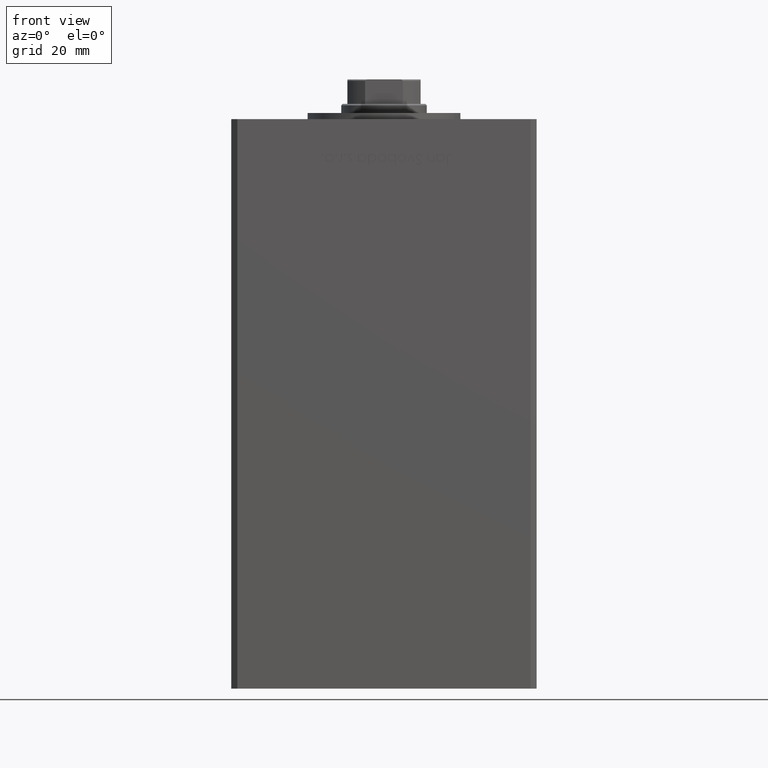
[diagram: clean part render]
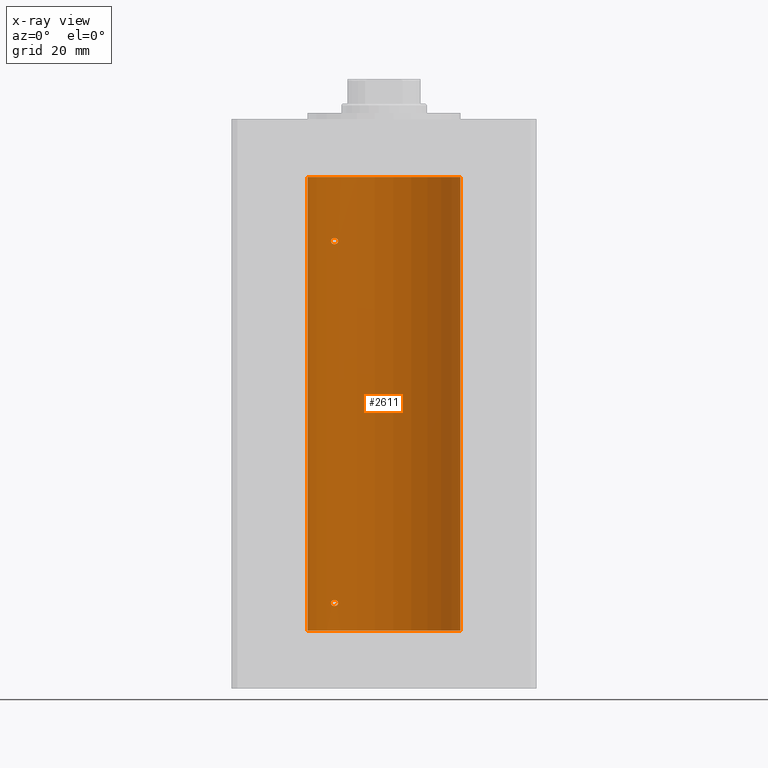
[diagram: x-ray — body ghosted, one internal face saturated and labeled with its STEP entity id]
A machine part, front view, then the same camera in x-ray: the body is ghosted and one INTERNAL B-rep face — a face not visible from any outside direction — is saturated and labeled: STEP entity #2611.
In plain terms, the highlighted cylindrical surface (partial cylindrical patch) has radius 25 mm, axis along (-0, -0, -1).
Its self-contained STEP definition (entity closure, byte-faithful):
#382 = CARTESIAN_POINT ( 'NONE',  ( -15.34666241858319502, 19.73581294411415499, 126.8121224605376653 ) ) ;
#646 = CARTESIAN_POINT ( 'NONE',  ( -15.00000000000019895, 20.00000000000001066, 127.4159474586024032 ) ) ;
#914 = CARTESIAN_POINT ( 'NONE',  ( -17.15234217094407754, 18.18812579706695942, 126.8965730437749926 ) ) ;
#1021 = EDGE_CURVE ( 'NONE', #1577, #42938, #44751, .T. ) ;
#1109 = CARTESIAN_POINT ( 'NONE',  ( -17.34935157289807250, 17.99999999999980815, 127.5000000000001137 ) ) ;
#1135 = EDGE_CURVE ( 'NONE', #25825, #39391, #13548, .T. ) ;
#1374 = CARTESIAN_POINT ( 'NONE',  ( -15.34624284195506050, 19.73614442075939834, 128.1876185318513137 ) ) ;
#1577 = VERTEX_POINT ( 'NONE', #48288 ) ;
#1985 = B_SPLINE_CURVE_WITH_KNOTS ( 'NONE', 3,
 ( #26398, #9806, #30362, #42495, #45955, #6366, #43027, #2406, #18500, #34584, #50674, #14515, #51469, #23501, #11093, #47492, #39590, #12129, #3449, #19543 ),
 .UNSPECIFIED., .F., .F.,
 ( 4, 2, 2, 2, 2, 2, 2, 2, 2, 4 ),
 ( 1.994630283518400476E-16, 0.0005040871078734959028, 0.001008174215746792312, 0.001512261323620088830, 0.002016348431493385131, 0.002520435539366681216, 0.003024522647239978167, 0.003528609755113274252, 0.003780653309049923812, 0.004032696862986573372 ),
 .UNSPECIFIED. ) ;
#2135 = CARTESIAN_POINT ( 'NONE',  ( -17.30163983552689189, 18.04615713653366882, 127.8360074727278004 ) ) ;
#2217 = CARTESIAN_POINT ( 'NONE',  ( -17.34935157289806895, 17.99999999999981526, 9.000000000000094147 ) ) ;
#2406 = CARTESIAN_POINT ( 'NONE',  ( -16.46844752485326069, 18.81003400474354237, 8.011544319038929274 ) ) ;
#2611 = ADVANCED_FACE ( 'NONE', ( #20856, #8978, #36945 ), #29016, .F. ) ;
#3449 = CARTESIAN_POINT ( 'NONE',  ( -15.00000000000019007, 20.00000000000002842, 8.915947458602436981 ) ) ;
#3512 = DIRECTION ( 'NONE',  ( -0.000000000000000000, -0.000000000000000000, -1.000000000000000000 ) ) ;
#3785 = VECTOR ( 'NONE', #3512, 1000.000000000000000 ) ;
#4122 = CARTESIAN_POINT ( 'NONE',  ( -25.00000000000000000, 0.000000000000000000, 148.5000000000000000 ) ) ;
#4357 = EDGE_LOOP ( 'NONE', ( #32109, #11519 ) ) ;
#4609 = CARTESIAN_POINT ( 'NONE',  ( -15.06722189748649399, 19.94943357555937880, 127.1759803248789211 ) ) ;
#4877 = CARTESIAN_POINT ( 'NONE',  ( -17.34935157289807250, 17.99999999999980815, 127.5000000000001137 ) ) ;
#5082 = CARTESIAN_POINT ( 'NONE',  ( -15.06763582406798285, 19.94912143246364877, 127.8250699387717191 ) ) ;
#5224 = VERTEX_POINT ( 'NONE', #26180 ) ;
#5852 = CARTESIAN_POINT ( 'NONE',  ( -15.01476641895662745, 19.98894406010706959, 127.6687945634013062 ) ) ;
#6102 = CARTESIAN_POINT ( 'NONE',  ( -16.99843849356149761, 18.33190197607053662, 128.2468335145756271 ) ) ;
#6366 = CARTESIAN_POINT ( 'NONE',  ( -16.83415218046512152, 18.48332662461726272, 8.134317266281161807 ) ) ;
#6852 = DIRECTION ( 'NONE',  ( -0.000000000000000000, 0.000000000000000000, 1.000000000000000000 ) ) ;
#7771 = CARTESIAN_POINT ( 'NONE',  ( -15.23538646979299216, 19.82157806413531986, 126.9119998952827615 ) ) ;
#8222 = EDGE_CURVE ( 'NONE', #48088, #44741, #23566, .T. ) ;
#8978 = FACE_BOUND ( 'NONE', #31580, .T. ) ;
#9462 = ORIENTED_EDGE ( 'NONE', *, *, #1135, .F. ) ;
#9806 = CARTESIAN_POINT ( 'NONE',  ( -17.34935157289747210, 18.00000000000001066, 8.828998360425808656 ) ) ;
#10136 = CARTESIAN_POINT ( 'NONE',  ( -17.14593038898729560, 18.19399314418734548, 9.595944883196500186 ) ) ;
#10378 = CARTESIAN_POINT ( 'NONE',  ( -17.05007833789893112, 18.28384926940286093, 9.701373999012139038 ) ) ;
#11093 = CARTESIAN_POINT ( 'NONE',  ( -15.23538646979297440, 19.82157806413534118, 8.411999895282772144 ) ) ;
#11519 = ORIENTED_EDGE ( 'NONE', *, *, #45988, .F. ) ;
#11763 = DIRECTION ( 'NONE',  ( -0.000000000000000000, -0.000000000000000000, -1.000000000000000000 ) ) ;
#11801 = VERTEX_POINT ( 'NONE', #48862 ) ;
#12129 = CARTESIAN_POINT ( 'NONE',  ( -15.01482636753732791, 19.98889854010116096, 8.831202661007704791 ) ) ;
#13548 = B_SPLINE_CURVE_WITH_KNOTS ( 'NONE', 3,
 ( #17798, #37082, #29160, #45269, #29422, #33888, #49972, #13827, #29923, #46031, #51282, #38622, #38356, #51015, #10378, #10136, #35190, #50233, #42575, #2217 ),
 .UNSPECIFIED., .F., .F.,
 ( 4, 2, 2, 2, 2, 2, 2, 2, 2, 4 ),
 ( 0.004032696862986573372, 0.004284699222246939054, 0.004536701581507305604, 0.005040706300028038704, 0.005544711018548771804, 0.006048715737069505771, 0.007056725174110978910, 0.007308727533371345460, 0.007560729892631712010, 0.008064734611152450314 ),
 .UNSPECIFIED. ) ;
#13657 = ORIENTED_EDGE ( 'NONE', *, *, #38294, .F. ) ;
#13827 = CARTESIAN_POINT ( 'NONE',  ( -15.58230678163760530, 19.55030131031898577, 9.843739486702938635 ) ) ;
#14515 = CARTESIAN_POINT ( 'NONE',  ( -15.70664578139651191, 19.45064696206092947, 8.100579599492109040 ) ) ;
#16297 = EDGE_CURVE ( 'NONE', #39391, #25825, #1985, .T. ) ;
#16993 = CARTESIAN_POINT ( 'NONE',  ( -17.05249165747619600, 18.28208333366437799, 126.7922192200364151 ) ) ;
#17198 = CARTESIAN_POINT ( 'NONE',  ( -17.34935157289806895, 17.99999999999981526, 9.000000000000094147 ) ) ;
#17473 = ORIENTED_EDGE ( 'NONE', *, *, #8222, .F. ) ;
#17717 = CARTESIAN_POINT ( 'NONE',  ( -15.00000000000000000, 20.00000000000000000, 127.5000000000000000 ) ) ;
#17798 = CARTESIAN_POINT ( 'NONE',  ( -14.99999999999999112, 20.00000000000001066, 9.000000000000000000 ) ) ;
#18148 = DIRECTION ( 'NONE',  ( -0.000000000000000000, 0.000000000000000000, 1.000000000000000000 ) ) ;
#18227 = CARTESIAN_POINT ( 'NONE',  ( -17.34935157289746854, 18.00000000000000711, 127.6709736906063739 ) ) ;
#18500 = CARTESIAN_POINT ( 'NONE',  ( -16.34293146994553680, 18.91921593628409681, 7.997342590672627871 ) ) ;
#18931 = CARTESIAN_POINT ( 'NONE',  ( 0.000000000000000000, 0.000000000000000000, 0.000000000000000000 ) ) ;
#19543 = CARTESIAN_POINT ( 'NONE',  ( -14.99999999999999112, 20.00000000000001066, 9.000000000000000000 ) ) ;
#20180 = CARTESIAN_POINT ( 'NONE',  ( -16.46844752485325358, 18.81003400474354237, 126.5115443190389044 ) ) ;
#20700 = CARTESIAN_POINT ( 'NONE',  ( -16.08757264251633501, 19.13682698743034294, 126.5034427658481775 ) ) ;
#20810 = CIRCLE ( 'NONE', #26651, 25.00000000000000000 ) ;
#20856 = FACE_OUTER_BOUND ( 'NONE', #27212, .T. ) ;
#21061 = CARTESIAN_POINT ( 'NONE',  ( -25.00000000000000000, 0.000000000000000000, 0.000000000000000000 ) ) ;
#21169 = CARTESIAN_POINT ( 'NONE',  ( -15.10490800566735814, 19.92096305044240268, 127.8962931740442173 ) ) ;
#21417 = CARTESIAN_POINT ( 'NONE',  ( -16.46913072925703858, 18.81168496547890712, 128.5057775588113884 ) ) ;
#21867 = DIRECTION ( 'NONE',  ( 1.000000000000000000, 0.000000000000000000, 0.000000000000000000 ) ) ;
#21939 = CARTESIAN_POINT ( 'NONE',  ( -16.08745393861403983, 19.13692152169250349, 128.4965015099869561 ) ) ;
#23501 = CARTESIAN_POINT ( 'NONE',  ( -15.34666241858317903, 19.73581294411416209, 8.312122460537615609 ) ) ;
#23566 = LINE ( 'NONE', #24083, #3785 ) ;
#23869 = CARTESIAN_POINT ( 'NONE',  ( -15.10490010356607016, 19.92096840819819192, 127.1037666713225320 ) ) ;
#24083 = CARTESIAN_POINT ( 'NONE',  ( 25.00000000000000000, 3.061616997868383043E-15, 148.5000000000000000 ) ) ;
#24135 = CARTESIAN_POINT ( 'NONE',  ( -16.34293146994552970, 18.91921593628409326, 126.4973425906726305 ) ) ;
#24460 = AXIS2_PLACEMENT_3D ( 'NONE', #26888, #6852, #50122 ) ;
#24656 = CARTESIAN_POINT ( 'NONE',  ( -15.95808436639360117, 19.24489366819299363, 126.5242608788495460 ) ) ;
#24920 = CARTESIAN_POINT ( 'NONE',  ( -17.34935157289747565, 18.00000000000000711, 127.3289983604258282 ) ) ;
#25081 = CARTESIAN_POINT ( 'NONE',  ( 0.000000000000000000, 0.000000000000000000, 148.5000000000000000 ) ) ;
#25825 = VERTEX_POINT ( 'NONE', #34949 ) ;
#26146 = CARTESIAN_POINT ( 'NONE',  ( -17.05007833789892757, 18.28384926940287869, 128.2013739990121906 ) ) ;
#26180 = CARTESIAN_POINT ( 'NONE',  ( -17.34935157289807250, 17.99999999999980815, 127.5000000000001137 ) ) ;
#26398 = CARTESIAN_POINT ( 'NONE',  ( -17.34935157289806895, 17.99999999999981526, 9.000000000000094147 ) ) ;
#26651 = AXIS2_PLACEMENT_3D ( 'NONE', #18931, #18148, #21867 ) ;
#26888 = CARTESIAN_POINT ( 'NONE',  ( 0.000000000000000000, 0.000000000000000000, 148.5000000000000000 ) ) ;
#27212 = EDGE_LOOP ( 'NONE', ( #17473, #48446, #36844, #13657 ) ) ;
#28072 = CARTESIAN_POINT ( 'NONE',  ( -15.01482636753733857, 19.98889854010115741, 127.3312026610076941 ) ) ;
#29016 = CYLINDRICAL_SURFACE ( 'NONE', #45906, 25.00000000000000000 ) ;
#29160 = CARTESIAN_POINT ( 'NONE',  ( -15.01476641895661679, 19.98894406010708380, 9.168794563401341691 ) ) ;
#29422 = CARTESIAN_POINT ( 'NONE',  ( -15.10490800566735814, 19.92096305044240978, 9.396293174044259899 ) ) ;
#29840 = CARTESIAN_POINT ( 'NONE',  ( -15.23594348686699007, 19.82115246225715310, 128.0887219326858428 ) ) ;
#29923 = CARTESIAN_POINT ( 'NONE',  ( -15.70535969280553346, 19.45169171760802840, 9.898960772112497253 ) ) ;
#30362 = CARTESIAN_POINT ( 'NONE',  ( -17.30269557861142360, 18.04515136187502122, 8.666042081755742643 ) ) ;
#31580 = EDGE_LOOP ( 'NONE', ( #33202, #9462 ) ) ;
#32109 = ORIENTED_EDGE ( 'NONE', *, *, #44938, .F. ) ;
#32560 = CARTESIAN_POINT ( 'NONE',  ( -15.70664578139652612, 19.45064696206092236, 126.6005795994921357 ) ) ;
#33202 = ORIENTED_EDGE ( 'NONE', *, *, #16297, .F. ) ;
#33547 = CARTESIAN_POINT ( 'NONE',  ( -15.00000000000020250, 20.00000000000001066, 127.5840388036241535 ) ) ;
#33808 = CARTESIAN_POINT ( 'NONE',  ( -15.70535969280552990, 19.45169171760802485, 128.3989607721124742 ) ) ;
#33888 = CARTESIAN_POINT ( 'NONE',  ( -15.23594348686699895, 19.82115246225716376, 9.588721932685826843 ) ) ;
#34584 = CARTESIAN_POINT ( 'NONE',  ( -16.08757264251632790, 19.13682698743033939, 8.003442765848200580 ) ) ;
#34949 = CARTESIAN_POINT ( 'NONE',  ( -14.99999999999999112, 20.00000000000001066, 9.000000000000000000 ) ) ;
#35190 = CARTESIAN_POINT ( 'NONE',  ( -17.19010376497221060, 18.15221652163110377, 9.535670123568005252 ) ) ;
#35806 = CARTESIAN_POINT ( 'NONE',  ( 25.00000000000000000, 3.061616997868383043E-15, 0.000000000000000000 ) ) ;
#36844 = ORIENTED_EDGE ( 'NONE', *, *, #1021, .T. ) ;
#36945 = FACE_BOUND ( 'NONE', #4357, .T. ) ;
#37082 = CARTESIAN_POINT ( 'NONE',  ( -15.00000000000018829, 20.00000000000001776, 9.084038803624167713 ) ) ;
#37250 = CARTESIAN_POINT ( 'NONE',  ( -17.14593038898728494, 18.19399314418736324, 128.0959448831965233 ) ) ;
#37506 = CARTESIAN_POINT ( 'NONE',  ( -16.72476285461318923, 18.58415905903082788, 128.4449447607957495 ) ) ;
#38224 = DIRECTION ( 'NONE',  ( -1.000000000000000000, 0.000000000000000000, 0.000000000000000000 ) ) ;
#38275 = CARTESIAN_POINT ( 'NONE',  ( -17.19010376497221060, 18.15221652163110377, 128.0356701235680248 ) ) ;
#38294 = EDGE_CURVE ( 'NONE', #44741, #42938, #20810, .T. ) ;
#38356 = CARTESIAN_POINT ( 'NONE',  ( -16.72476285461318568, 18.58415905903082788, 9.944944760795701555 ) ) ;
#38602 = B_SPLINE_CURVE_WITH_KNOTS ( 'NONE', 3,
 ( #17717, #33547, #5852, #5082, #21169, #29840, #1374, #41722, #33808, #45442, #21939, #21417, #37506, #6102, #26146, #37250, #38275, #2135, #18227, #1109 ),
 .UNSPECIFIED., .F., .F.,
 ( 4, 2, 2, 2, 2, 2, 2, 2, 2, 4 ),
 ( 0.004032696862986547351, 0.004284699222246883543, 0.004536701581507219735, 0.005040706300027958907, 0.005544711018548698946, 0.006048715737069438117, 0.007056725174110931205, 0.007308727533371293418, 0.007560729892631655631, 0.008064734611152384394 ),
 .UNSPECIFIED. ) ;
#38622 = CARTESIAN_POINT ( 'NONE',  ( -16.46913072925703148, 18.81168496547890712, 10.00577755881140618 ) ) ;
#39391 = VERTEX_POINT ( 'NONE', #17198 ) ;
#39590 = CARTESIAN_POINT ( 'NONE',  ( -15.06722189748647622, 19.94943357555938945, 8.675980324878882044 ) ) ;
#39618 = CIRCLE ( 'NONE', #24460, 25.00000000000000000 ) ;
#40582 = B_SPLINE_CURVE_WITH_KNOTS ( 'NONE', 3,
 ( #4877, #24920, #52096, #914, #16993, #47875, #43923, #20180, #24135, #20700, #24656, #32560, #48138, #382, #7771, #23869, #4609, #28072, #646, #48918 ),
 .UNSPECIFIED., .F., .F.,
 ( 4, 2, 2, 2, 2, 2, 2, 2, 2, 4 ),
 ( 2.254873622441466949E-16, 0.0005040871078735239836, 0.001008174215746822453, 0.001512261323620121140, 0.002016348431493419392, 0.002520435539366717645, 0.003024522647240016765, 0.003528609755113315451, 0.003780653309049931184, 0.004032696862986547351 ),
 .UNSPECIFIED. ) ;
#41158 = DIRECTION ( 'NONE',  ( -0.000000000000000000, -0.000000000000000000, -1.000000000000000000 ) ) ;
#41722 = CARTESIAN_POINT ( 'NONE',  ( -15.58230678163760352, 19.55030131031897511, 128.3437394867029013 ) ) ;
#42495 = CARTESIAN_POINT ( 'NONE',  ( -17.15234217094407043, 18.18812579706695232, 8.396573043774958833 ) ) ;
#42575 = CARTESIAN_POINT ( 'NONE',  ( -17.34935157289747210, 18.00000000000001421, 9.170973690606336604 ) ) ;
#42914 = CARTESIAN_POINT ( 'NONE',  ( 25.00000000000000000, 3.061616997868383043E-15, 148.5000000000000000 ) ) ;
#42938 = VERTEX_POINT ( 'NONE', #21061 ) ;
#43027 = CARTESIAN_POINT ( 'NONE',  ( -16.71492528194902860, 18.59135325782701287, 8.080141558342052832 ) ) ;
#43923 = CARTESIAN_POINT ( 'NONE',  ( -16.71492528194903215, 18.59135325782701287, 126.5801415583420493 ) ) ;
#44741 = VERTEX_POINT ( 'NONE', #35806 ) ;
#44751 = LINE ( 'NONE', #4122, #46709 ) ;
#44938 = EDGE_CURVE ( 'NONE', #5224, #11801, #40582, .T. ) ;
#45269 = CARTESIAN_POINT ( 'NONE',  ( -15.06763582406798463, 19.94912143246364522, 9.325069938771754607 ) ) ;
#45442 = CARTESIAN_POINT ( 'NONE',  ( -15.95796937689560657, 19.24499537862566001, 128.4757730996522014 ) ) ;
#45906 = AXIS2_PLACEMENT_3D ( 'NONE', #25081, #41158, #38224 ) ;
#45955 = CARTESIAN_POINT ( 'NONE',  ( -17.05249165747619955, 18.28208333366437088, 8.292219220036422200 ) ) ;
#45988 = EDGE_CURVE ( 'NONE', #11801, #5224, #38602, .T. ) ;
#46031 = CARTESIAN_POINT ( 'NONE',  ( -15.95796937689561013, 19.24499537862566712, 9.975773099652194276 ) ) ;
#46709 = VECTOR ( 'NONE', #11763, 1000.000000000000000 ) ;
#47492 = CARTESIAN_POINT ( 'NONE',  ( -15.10490010356604174, 19.92096840819820258, 8.603766671322523152 ) ) ;
#47875 = CARTESIAN_POINT ( 'NONE',  ( -16.83415218046512152, 18.48332662461726272, 126.6343172662812151 ) ) ;
#48088 = VERTEX_POINT ( 'NONE', #42914 ) ;
#48138 = CARTESIAN_POINT ( 'NONE',  ( -15.58164749401201910, 19.55082150006404973, 126.6566780726852102 ) ) ;
#48288 = CARTESIAN_POINT ( 'NONE',  ( -25.00000000000000000, 0.000000000000000000, 148.5000000000000000 ) ) ;
#48446 = ORIENTED_EDGE ( 'NONE', *, *, #49933, .T. ) ;
#48862 = CARTESIAN_POINT ( 'NONE',  ( -15.00000000000000000, 20.00000000000000000, 127.5000000000000000 ) ) ;
#48918 = CARTESIAN_POINT ( 'NONE',  ( -15.00000000000000000, 20.00000000000000000, 127.5000000000000000 ) ) ;
#49933 = EDGE_CURVE ( 'NONE', #48088, #1577, #39618, .T. ) ;
#49972 = CARTESIAN_POINT ( 'NONE',  ( -15.34624284195506583, 19.73614442075939479, 9.687618531851304837 ) ) ;
#50122 = DIRECTION ( 'NONE',  ( 1.000000000000000000, 0.000000000000000000, 0.000000000000000000 ) ) ;
#50233 = CARTESIAN_POINT ( 'NONE',  ( -17.30163983552689899, 18.04615713653367592, 9.336007472727789747 ) ) ;
#50674 = CARTESIAN_POINT ( 'NONE',  ( -15.95808436639360295, 19.24489366819300429, 8.024260878849535317 ) ) ;
#51015 = CARTESIAN_POINT ( 'NONE',  ( -16.99843849356148695, 18.33190197607054372, 9.746833514575657276 ) ) ;
#51282 = CARTESIAN_POINT ( 'NONE',  ( -16.08745393861402917, 19.13692152169249994, 9.996501509986932987 ) ) ;
#51469 = CARTESIAN_POINT ( 'NONE',  ( -15.58164749401199956, 19.55082150006405683, 8.156678072685190628 ) ) ;
#52096 = CARTESIAN_POINT ( 'NONE',  ( -17.30269557861142005, 18.04515136187501767, 127.1660420817557196 ) ) ;